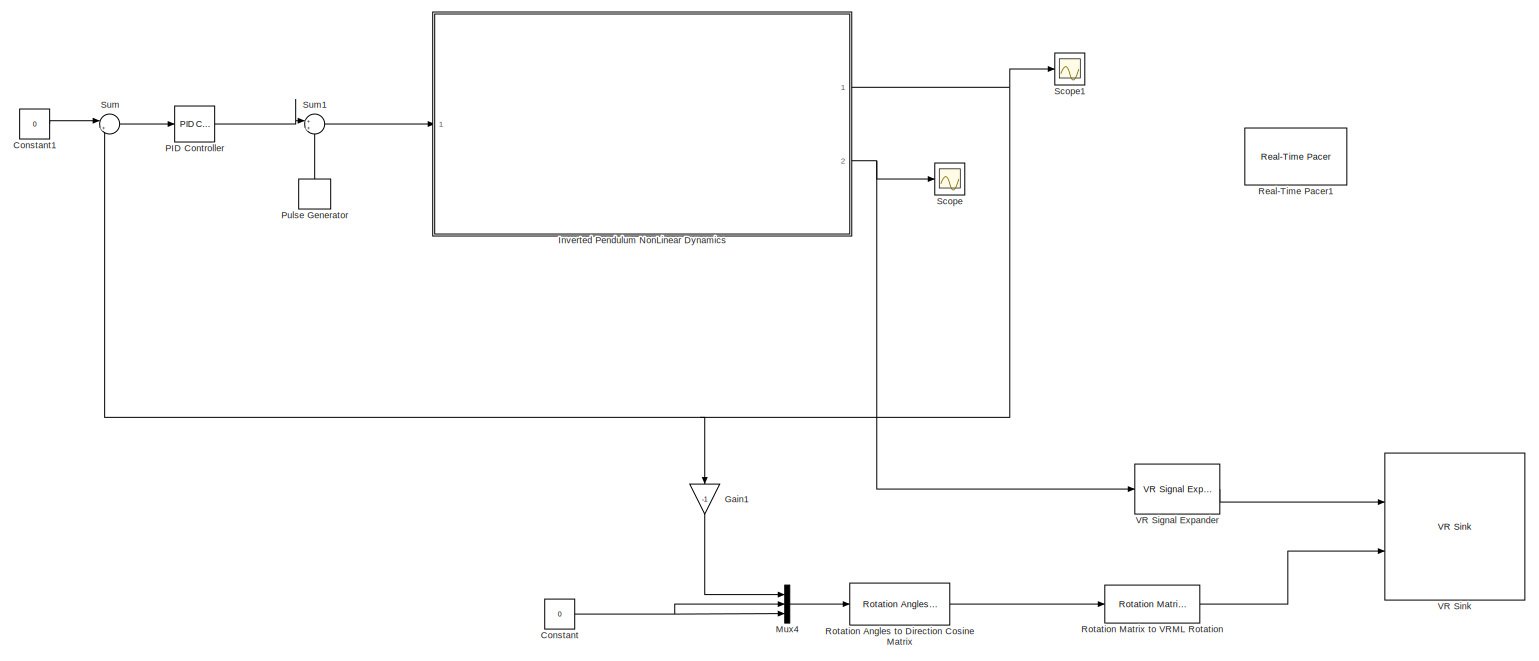
[diagram: root canvas - part 1/2, center side, full height]
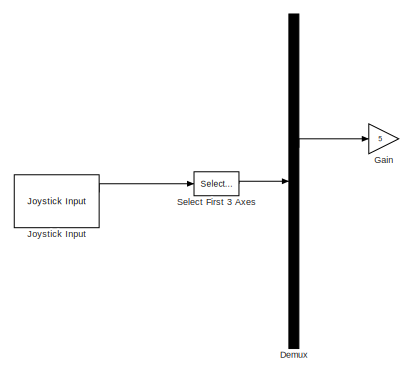
[diagram: root canvas - part 2/2, middle left region]
MODEL slx_1cfe85b3d228
KIND model
CONFIG AbsTol = auto
CONFIG EnableMultiTasking = off
CONFIG FixedStep = auto
CONFIG MaxStep = auto
CONFIG MinStep = auto
CONFIG RelTol = 1e-3
CONFIG SampleTimeConstraint = Unconstrained
CONFIG Solver = ode45
CONFIG SolverName = ode45
CONFIG StartTime = 0.0
CONFIG StopTime = 20
BLOCK [Constant] Constant
  Value = 0
BLOCK [Constant] Constant1
  Value = 0
BLOCK [Demux] Demux
  Commented = on
  DisplayOption = bar
  Ports = [1, 4]
BLOCK [Gain] Gain
  Commented = on
  Gain = 5
  OutDataTypeStr = Inherit: Inherit via internal rule
  ParamDataTypeStr = Inherit: Inherit via internal rule
  SaturateOnIntegerOverflow = off
BLOCK [Gain] Gain1
  Gain = -1
  OutDataTypeStr = Inherit: Inherit via internal rule
  ParamDataTypeStr = Inherit: Inherit via internal rule
  SaturateOnIntegerOverflow = off
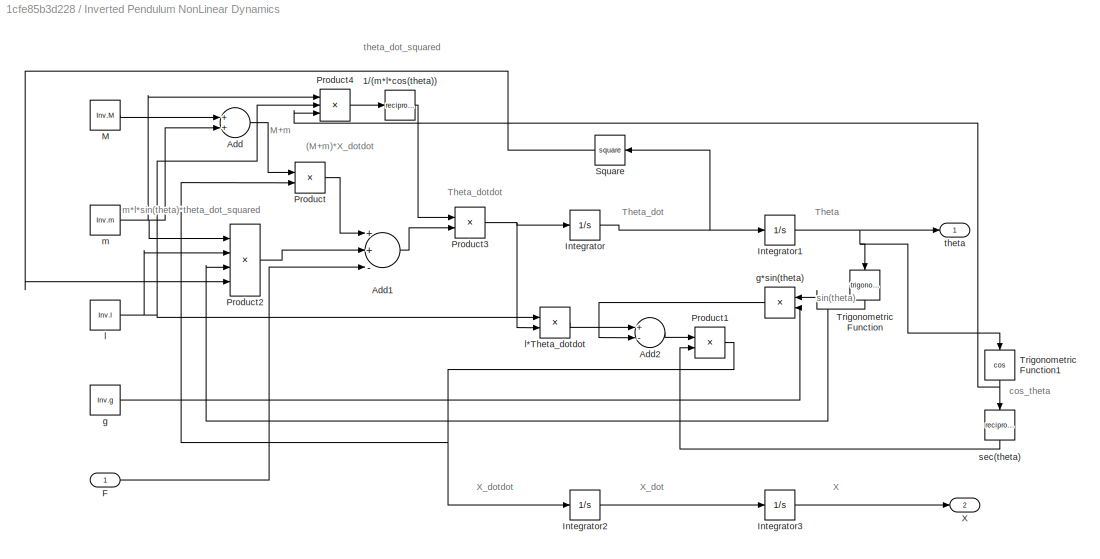
BLOCK [SubSystem] Inverted Pendulum NonLinear Dynamics
  Ports = [1, 2]
  RequestExecContextInheritance = off
BLOCK [Math] Inverted Pendulum NonLinear Dynamics/1//(m*l*cos(theta))
  Operator = reciprocal
  Ports = [1, 1]
BLOCK [Sum] Inverted Pendulum NonLinear Dynamics/Add
  InputSameDT = off
  OutDataTypeStr = Inherit: Inherit via internal rule
  Ports = [2, 1]
  SaturateOnIntegerOverflow = off
BLOCK [Sum] Inverted Pendulum NonLinear Dynamics/Add1
  InputSameDT = off
  Inputs = ++-
  OutDataTypeStr = Inherit: Inherit via internal rule
  Ports = [3, 1]
  SaturateOnIntegerOverflow = off
BLOCK [Sum] Inverted Pendulum NonLinear Dynamics/Add2
  InputSameDT = off
  Inputs = +-
  OutDataTypeStr = Inherit: Inherit via internal rule
  Ports = [2, 1]
  SaturateOnIntegerOverflow = off
BLOCK [Inport] Inverted Pendulum NonLinear Dynamics/F
  IconDisplay = Port number
BLOCK [Integrator] Inverted Pendulum NonLinear Dynamics/Integrator
  Ports = [1, 1]
BLOCK [Integrator] Inverted Pendulum NonLinear Dynamics/Integrator1
  Ports = [1, 1]
BLOCK [Integrator] Inverted Pendulum NonLinear Dynamics/Integrator2
  Ports = [1, 1]
BLOCK [Integrator] Inverted Pendulum NonLinear Dynamics/Integrator3
  Ports = [1, 1]
BLOCK [Constant] Inverted Pendulum NonLinear Dynamics/M
  Value = Inv.M
BLOCK [Product] Inverted Pendulum NonLinear Dynamics/Product
  InputSameDT = off
  OutDataTypeStr = Inherit: Inherit via internal rule
  Ports = [2, 1]
  RndMeth = Floor
  SaturateOnIntegerOverflow = off
BLOCK [Product] Inverted Pendulum NonLinear Dynamics/Product1
  InputSameDT = off
  OutDataTypeStr = Inherit: Inherit via internal rule
  Ports = [2, 1]
  RndMeth = Floor
  SaturateOnIntegerOverflow = off
BLOCK [Product] Inverted Pendulum NonLinear Dynamics/Product2
  InputSameDT = off
  Inputs = 4
  OutDataTypeStr = Inherit: Inherit via internal rule
  Ports = [4, 1]
  RndMeth = Floor
  SaturateOnIntegerOverflow = off
BLOCK [Product] Inverted Pendulum NonLinear Dynamics/Product3
  InputSameDT = off
  OutDataTypeStr = Inherit: Inherit via internal rule
  Ports = [2, 1]
  RndMeth = Floor
  SaturateOnIntegerOverflow = off
BLOCK [Product] Inverted Pendulum NonLinear Dynamics/Product4
  InputSameDT = off
  Inputs = 3
  OutDataTypeStr = Inherit: Inherit via internal rule
  Ports = [3, 1]
  RndMeth = Floor
  SaturateOnIntegerOverflow = off
BLOCK [Math] Inverted Pendulum NonLinear Dynamics/Square
  Operator = square
  Ports = [1, 1]
BLOCK [Trigonometry] Inverted Pendulum NonLinear Dynamics/Trigonometric Function
  Ports = [1, 1]
BLOCK [Trigonometry] Inverted Pendulum NonLinear Dynamics/Trigonometric Function1
  Operator = cos
  Ports = [1, 1]
BLOCK [Outport] Inverted Pendulum NonLinear Dynamics/X
  IconDisplay = Port number
  Port = 2
BLOCK [Constant] Inverted Pendulum NonLinear Dynamics/g
  Value = Inv.g
BLOCK [Product] Inverted Pendulum NonLinear Dynamics/g*sin(theta)
  InputSameDT = off
  OutDataTypeStr = Inherit: Inherit via internal rule
  Ports = [2, 1]
  RndMeth = Floor
  SaturateOnIntegerOverflow = off
BLOCK [Constant] Inverted Pendulum NonLinear Dynamics/l
  Value = Inv.l
BLOCK [Product] Inverted Pendulum NonLinear Dynamics/l*Theta_dotdot
  InputSameDT = off
  OutDataTypeStr = Inherit: Inherit via internal rule
  Ports = [2, 1]
  RndMeth = Floor
  SaturateOnIntegerOverflow = off
BLOCK [Constant] Inverted Pendulum NonLinear Dynamics/m
  Value = Inv.m
BLOCK [Math] Inverted Pendulum NonLinear Dynamics/sec(theta)    
  Operator = reciprocal
  Ports = [1, 1]
BLOCK [Outport] Inverted Pendulum NonLinear Dynamics/theta
  IconDisplay = Port number
BLOCK [Reference] Joystick Input  REF=vrlib/Joystick Input
  Commented = on
  Ports = [0, 2]
  SourceBlock = vrlib/Joystick Input
  SourceProductBaseCode = VR
  SourceProductName = Simulink 3D Animation
  SourceType = Joystick Input
BLOCK [Mux] Mux4
  DisplayOption = bar
  Inputs = 3
  Ports = [3, 1]
BLOCK [Reference] PID Controller  REF=simulink/Continuous/PID Controller
  Ports = [1, 1]
  SourceBlock = simulink/Continuous/PID Controller
  SourceProductBaseCode = SL
  SourceProductName = Simulink
  SourceType = PID 1dof
BLOCK [DiscretePulseGenerator] Pulse Generator
  Amplitude = 500
  Period = 1000
  PhaseDelay = 10
  Ports = [0, 1]
  PulseType = Time based
  PulseWidth = 0.001
BLOCK [Reference] Real-Time Pacer1  REF=realtime_pacer_lib/Real-Time Pacer
  Commented = on
  Ports = []
  SourceBlock = realtime_pacer_lib/Real-Time Pacer
  SourceType = RealTime_Pacer
BLOCK [Reference] Rotation Angles to Direction Cosine Matrix  REF=sharedtransform/Rotation Angles to
Direction Cosine Matrix
  AttributesFormatString = Rotation Order: %<rotationOrder>
  Ports = [1, 1]
  SourceBlock = sharedtransform/Rotation Angles to\nDirection Cosine Matrix
  SourceProductBaseCode = AE
  SourceProductName = Aerospace Blockset
  SourceType = Ang2DCM
BLOCK [Reference] Rotation Matrix to VRML Rotation  REF=vrlib/Utilities/Rotation Matrix
to VRML Rotation
  Ports = [1, 1]
  SourceBlock = vrlib/Utilities/Rotation Matrix\nto VRML Rotation
  SourceProductBaseCode = VR
  SourceProductName = Simulink 3D Animation
  SourceType = Rotation Matrix to VRML Rotation
BLOCK [Scope] Scope
  Floating = off
  NumInputPorts = 1
  Ports = [1]
  ScopeSpecificationString = Simulink.scopes.TimeScopeBlockCfg('CurrentConfiguration', extmgr.ConfigurationSet(extmgr.Configuration('Core','General UI',true),extmgr.Configuration('Core','Source UI',true),extmgr.Configuration('Sources','WiredSimulink',true),extmgr.Configuration('Visuals','Time Domain',true,'SerializedDisplays',{struct('MinYLimReal','-1.60451','MaxYLimReal','0.52715','YLabelReal','','MinYLimMag','0.00000','MaxY...<+1348ch>
BLOCK [Scope] Scope1
  Floating = off
  NumInputPorts = 1
  Ports = [1]
  ScopeSpecificationString = Simulink.scopes.TimeScopeBlockCfg('CurrentConfiguration', extmgr.ConfigurationSet(extmgr.Configuration('Core','General UI',true),extmgr.Configuration('Core','Source UI',true),extmgr.Configuration('Sources','WiredSimulink',true,'DataLoggingVariableName','ScopeData1'),extmgr.Configuration('Visuals','Time Domain',true,'SerializedDisplays',{struct('MinYLimReal','-0.59241','MaxYLimReal','1.3065','YLabe...<+1383ch>
BLOCK [Selector] Select First 3 Axes
  AttributesFormatString = (Joystick - dependent)
  Commented = on
  IndexOptions = Index vector (dialog)
  Indices = [1 2 3 4]
  InputPortWidth = 5
  OutputSizes = 1
  Ports = [1, 1]
BLOCK [Sum] Sum
  IconShape = round
  InputSameDT = off
  Inputs = |+-
  OutDataTypeStr = Inherit: Inherit via internal rule
  Ports = [2, 1]
  SaturateOnIntegerOverflow = off
BLOCK [Sum] Sum1
  IconShape = round
  InputSameDT = off
  OutDataTypeStr = Inherit: Inherit via internal rule
  Ports = [2, 1]
  SaturateOnIntegerOverflow = off
BLOCK [Reference] VR Signal Expander  REF=vrlib/VR Signal Expander
  Ports = [1, 1]
  SourceBlock = vrlib/VR Signal Expander
  SourceProductBaseCode = VR
  SourceProductName = Simulink 3D Animation
  SourceType = VR Signal Expander
BLOCK [Reference] VR Sink  REF=vrlib/VR Sink
  InstantiateOnLoad = on
  Ports = [2]
  SourceBlock = vrlib/VR Sink
  SourceProductBaseCode = VR
  SourceProductName = Simulink 3D Animation
  SourceType = Virtual Reality Sink
ANNOTATION Inverted Pendulum NonLinear Dynamics: (M+m)*X_dotdot
ANNOTATION Inverted Pendulum NonLinear Dynamics: M+m
ANNOTATION Inverted Pendulum NonLinear Dynamics: Theta
ANNOTATION Inverted Pendulum NonLinear Dynamics: Theta_dot
ANNOTATION Inverted Pendulum NonLinear Dynamics: Theta_dotdot
ANNOTATION Inverted Pendulum NonLinear Dynamics: X
ANNOTATION Inverted Pendulum NonLinear Dynamics: X_dot
ANNOTATION Inverted Pendulum NonLinear Dynamics: X_dotdot
ANNOTATION Inverted Pendulum NonLinear Dynamics: cos_theta
ANNOTATION Inverted Pendulum NonLinear Dynamics: m*l*sin(theta)*theta_dot_squared
ANNOTATION Inverted Pendulum NonLinear Dynamics: sin(theta)
ANNOTATION Inverted Pendulum NonLinear Dynamics: theta_dot_squared
LINE Constant1:1 -> Sum:1
NET Constant:1 -> Mux4:2, Mux4:3
LINE Demux:2 -> Gain:1
LINE Gain1:1 -> Mux4:1
LINE Inverted Pendulum NonLinear Dynamics/1//(m*l*cos(theta)):1 -> Inverted Pendulum NonLinear Dynamics/Product3:1
LINE Inverted Pendulum NonLinear Dynamics/Add1:1 -> Inverted Pendulum NonLinear Dynamics/Product3:2
LINE Inverted Pendulum NonLinear Dynamics/Add2:1 -> Inverted Pendulum NonLinear Dynamics/Product1:1
LINE Inverted Pendulum NonLinear Dynamics/Add:1 -> Inverted Pendulum NonLinear Dynamics/Product:1
LINE Inverted Pendulum NonLinear Dynamics/F:1 -> Inverted Pendulum NonLinear Dynamics/Add1:3
NET Inverted Pendulum NonLinear Dynamics/Integrator1:1 -> Inverted Pendulum NonLinear Dynamics/Trigonometric Function1:1, Inverted Pendulum NonLinear Dynamics/Trigonometric Function:1, Inverted Pendulum NonLinear Dynamics/theta:1
LINE Inverted Pendulum NonLinear Dynamics/Integrator2:1 -> Inverted Pendulum NonLinear Dynamics/Integrator3:1
LINE Inverted Pendulum NonLinear Dynamics/Integrator3:1 -> Inverted Pendulum NonLinear Dynamics/X:1
NET Inverted Pendulum NonLinear Dynamics/Integrator:1 -> Inverted Pendulum NonLinear Dynamics/Integrator1:1, Inverted Pendulum NonLinear Dynamics/Square:1
LINE Inverted Pendulum NonLinear Dynamics/M:1 -> Inverted Pendulum NonLinear Dynamics/Add:1
NET Inverted Pendulum NonLinear Dynamics/Product1:1 -> Inverted Pendulum NonLinear Dynamics/Integrator2:1, Inverted Pendulum NonLinear Dynamics/Product:2
LINE Inverted Pendulum NonLinear Dynamics/Product2:1 -> Inverted Pendulum NonLinear Dynamics/Add1:2
NET Inverted Pendulum NonLinear Dynamics/Product3:1 -> Inverted Pendulum NonLinear Dynamics/Integrator:1, Inverted Pendulum NonLinear Dynamics/l*Theta_dotdot:2
LINE Inverted Pendulum NonLinear Dynamics/Product4:1 -> Inverted Pendulum NonLinear Dynamics/1//(m*l*cos(theta)):1
LINE Inverted Pendulum NonLinear Dynamics/Product:1 -> Inverted Pendulum NonLinear Dynamics/Add1:1
LINE Inverted Pendulum NonLinear Dynamics/Square:1 -> Inverted Pendulum NonLinear Dynamics/Product2:4
NET Inverted Pendulum NonLinear Dynamics/Trigonometric Function1:1 -> Inverted Pendulum NonLinear Dynamics/Product4:3, Inverted Pendulum NonLinear Dynamics/sec(theta)    :1
NET Inverted Pendulum NonLinear Dynamics/Trigonometric Function:1 -> Inverted Pendulum NonLinear Dynamics/Product2:3, Inverted Pendulum NonLinear Dynamics/g*sin(theta):1
LINE Inverted Pendulum NonLinear Dynamics/g*sin(theta):1 -> Inverted Pendulum NonLinear Dynamics/Add2:2
LINE Inverted Pendulum NonLinear Dynamics/g:1 -> Inverted Pendulum NonLinear Dynamics/g*sin(theta):2
LINE Inverted Pendulum NonLinear Dynamics/l*Theta_dotdot:1 -> Inverted Pendulum NonLinear Dynamics/Add2:1
NET Inverted Pendulum NonLinear Dynamics/l:1 -> Inverted Pendulum NonLinear Dynamics/Product2:2, Inverted Pendulum NonLinear Dynamics/Product4:2, Inverted Pendulum NonLinear Dynamics/l*Theta_dotdot:1
NET Inverted Pendulum NonLinear Dynamics/m:1 -> Inverted Pendulum NonLinear Dynamics/Add:2, Inverted Pendulum NonLinear Dynamics/Product2:1, Inverted Pendulum NonLinear Dynamics/Product4:1
LINE Inverted Pendulum NonLinear Dynamics/sec(theta)    :1 -> Inverted Pendulum NonLinear Dynamics/Product1:2
NET Inverted Pendulum NonLinear Dynamics:1 -> Gain1:1, Scope1:1, Sum:2
NET Inverted Pendulum NonLinear Dynamics:2 -> Scope:1, VR Signal Expander:1
LINE Joystick Input:1 -> Select First 3 Axes:1
LINE Mux4:1 -> Rotation Angles to Direction Cosine Matrix:1
LINE PID Controller:1 -> Sum1:1
LINE Pulse Generator:1 -> Sum1:2
LINE Rotation Angles to Direction Cosine Matrix:1 -> Rotation Matrix to VRML Rotation:1
LINE Rotation Matrix to VRML Rotation:1 -> VR Sink:2
LINE Select First 3 Axes:1 -> Demux:1
LINE Sum1:1 -> Inverted Pendulum NonLinear Dynamics:1
LINE Sum:1 -> PID Controller:1
LINE VR Signal Expander:1 -> VR Sink:1
note: NET lines group one-source signal fan-out (src -> all destinations, sorted); 1:1 wires keep LINE
